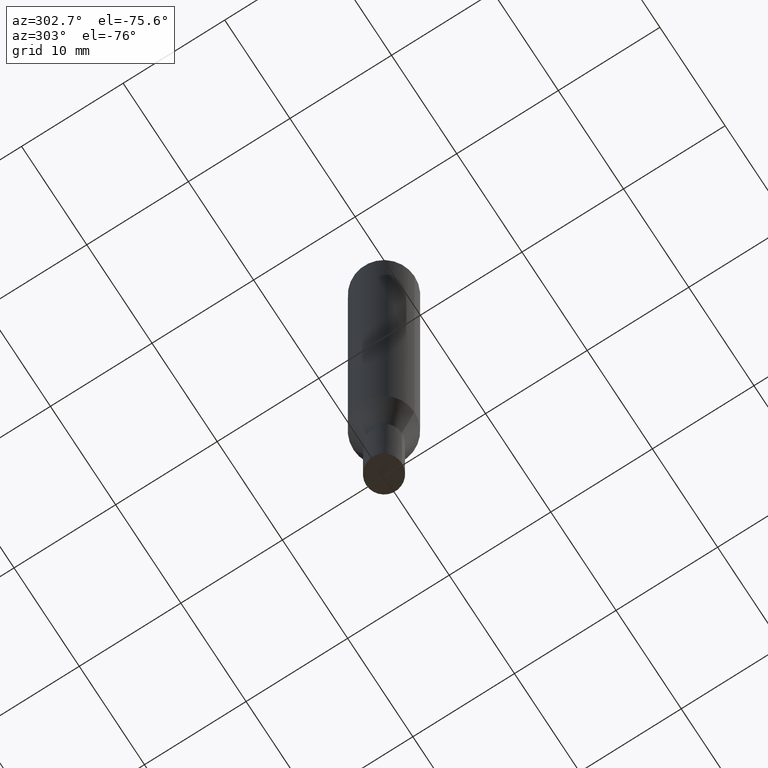
[diagram: clean part render]
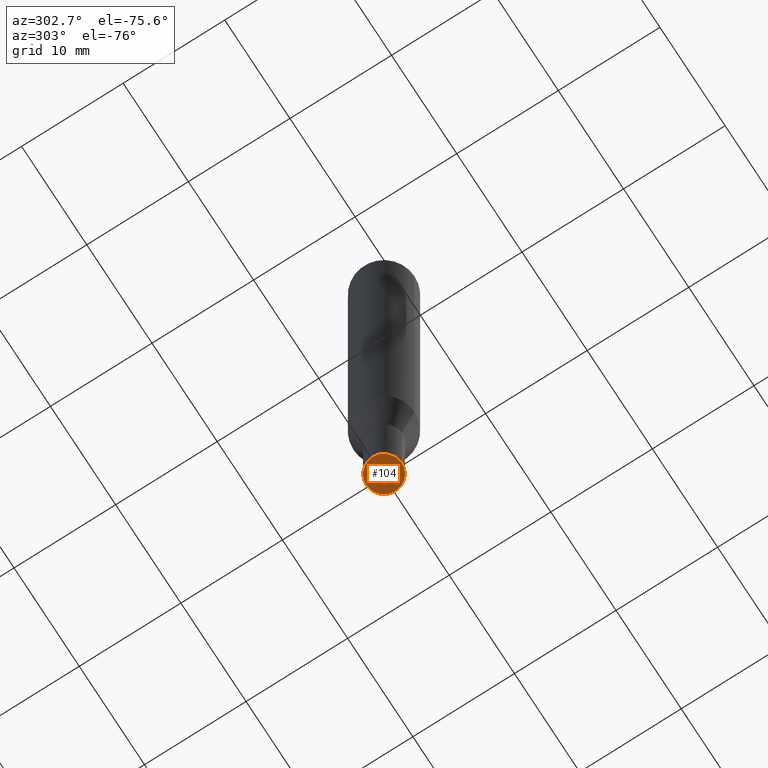
[diagram: same view with one face highlighted and labeled with its STEP entity id]
A machine part, auxiliary view. The second image highlights one B-rep face of the part: STEP entity #104.
In plain terms, the highlighted planar face has unit normal (0, 0, -1).
Its self-contained STEP definition (entity closure, byte-faithful):
#90=EDGE_CURVE('',#158,#174,#212,.T.);
#104=ADVANCED_FACE('',(#227),#228,.T.);
#158=VERTEX_POINT('',#288);
#170=EDGE_CURVE('',#174,#158,#302,.T.);
#174=VERTEX_POINT('',#306);
#212=CIRCLE('',#341,1.75);
#227=FACE_OUTER_BOUND('',#359,.T.);
#228=PLANE('',#360);
#288=CARTESIAN_POINT('',(2.14306111918916E-016,-1.75,-60.0));
#302=CIRCLE('',#452,1.75);
#306=CARTESIAN_POINT('',(0.0,1.75,-60.0));
#341=AXIS2_PLACEMENT_3D('',#485,#486,#487);
#359=EDGE_LOOP('',(#506,#507));
#360=AXIS2_PLACEMENT_3D('',#508,#509,#510);
#452=AXIS2_PLACEMENT_3D('',#602,#603,#604);
#485=CARTESIAN_POINT('',(0.0,0.0,-60.0));
#486=DIRECTION('',(0.0,0.0,-1.0));
#487=DIRECTION('',(0.0,1.0,0.0));
#506=ORIENTED_EDGE('',*,*,#170,.T.);
#507=ORIENTED_EDGE('',*,*,#90,.T.);
#508=CARTESIAN_POINT('',(0.0,0.8725,-60.0));
#509=DIRECTION('',(0.0,0.0,-1.0));
#510=DIRECTION('',(0.0,1.0,0.0));
#602=CARTESIAN_POINT('',(0.0,0.0,-60.0));
#603=DIRECTION('',(0.0,0.0,-1.0));
#604=DIRECTION('',(0.0,1.0,0.0));